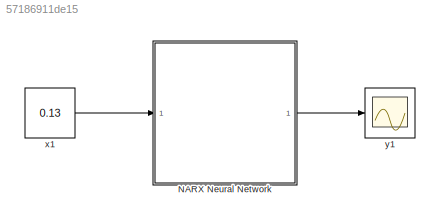
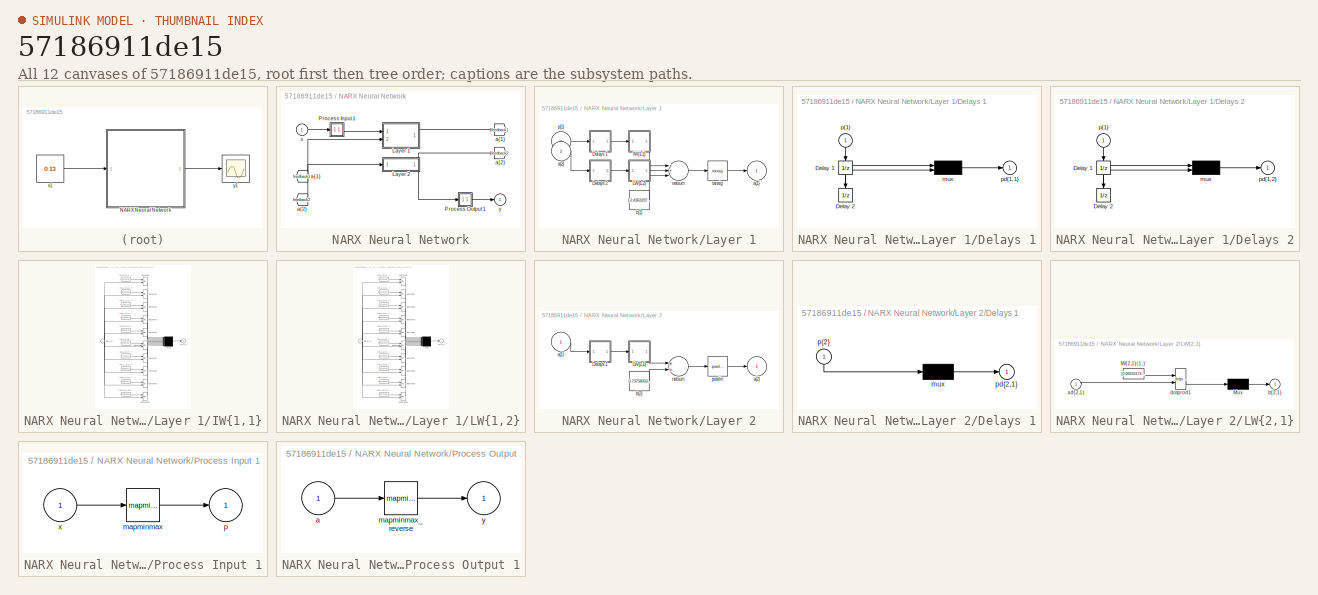
[diagram: thumbnail index - all 12 canvases of the model, root first then tree order]
MODEL slx_57186911de15
KIND model
CONFIG AbsTol = auto
CONFIG EnableMultiTasking = off
CONFIG FixedStep = auto
CONFIG MaxStep = auto
CONFIG MinStep = auto
CONFIG RelTol = 1e-3
CONFIG SampleTimeConstraint = Unconstrained
CONFIG Solver = VariableStepAuto
CONFIG SolverName = VariableStepAuto
CONFIG StartTime = 0.0
CONFIG StopTime = 10.0
BLOCK [SubSystem] NARX Neural Network
  Ports = [1, 1]
  RequestExecContextInheritance = off
BLOCK [From] NARX Neural Network/ a{1} 
  GotoTag = feedback1
BLOCK [From] NARX Neural Network/ a{2} 
  GotoTag = feedback2
BLOCK [SubSystem] NARX Neural Network/Layer 1
  Ports = [2, 1]
  RequestExecContextInheritance = off
BLOCK [SubSystem] NARX Neural Network/Layer 1/Delays 1
  Ports = [1, 1]
  RequestExecContextInheritance = off
BLOCK [UnitDelay] NARX Neural Network/Layer 1/Delays 1/Delay 1
  InitialCondition = pi_input_1_delayed_1
  SampleTime = 0.01
BLOCK [UnitDelay] NARX Neural Network/Layer 1/Delays 1/Delay 2
  InitialCondition = pi_input_1_delayed_2
  SampleTime = 0.01
BLOCK [Mux] NARX Neural Network/Layer 1/Delays 1/mux
  Inputs = 2
  Ports = [2, 1]
BLOCK [Outport] NARX Neural Network/Layer 1/Delays 1/pd{1,1}
  IconDisplay = Port number
BLOCK [Inport] NARX Neural Network/Layer 1/Delays 1/p{1}
  IconDisplay = Port number
  PortDimensions = 1
  SampleTime = 0.01
BLOCK [SubSystem] NARX Neural Network/Layer 1/Delays 2
  Ports = [1, 1]
  RequestExecContextInheritance = off
BLOCK [UnitDelay] NARX Neural Network/Layer 1/Delays 2/Delay 1
  InitialCondition = ai_layer_2_delayed_1
  SampleTime = 0.01
BLOCK [UnitDelay] NARX Neural Network/Layer 1/Delays 2/Delay 2
  InitialCondition = ai_layer_2_delayed_2
  SampleTime = 0.01
BLOCK [Mux] NARX Neural Network/Layer 1/Delays 2/mux
  Inputs = 2
  Ports = [2, 1]
BLOCK [Outport] NARX Neural Network/Layer 1/Delays 2/pd{1,2}
  IconDisplay = Port number
BLOCK [Inport] NARX Neural Network/Layer 1/Delays 2/p{1}
  IconDisplay = Port number
  PortDimensions = 1
  SampleTime = 0.01
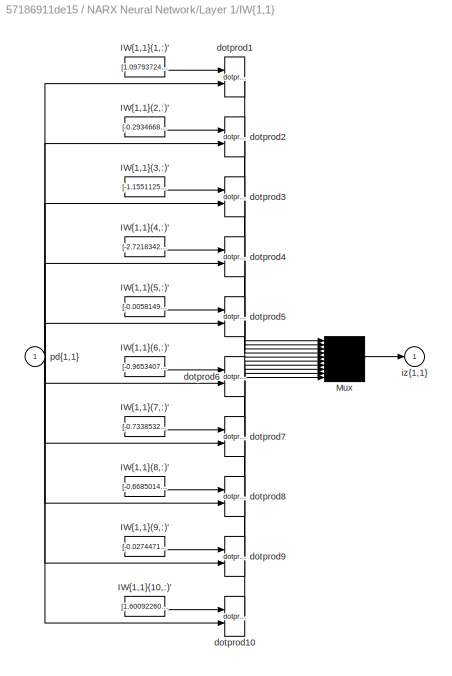
BLOCK [SubSystem] NARX Neural Network/Layer 1/IW{1,1}
  Ports = [1, 1]
  RequestExecContextInheritance = off
BLOCK [Constant] NARX Neural Network/Layer 1/IW{1,1}/IW{1,1}(1,:)'
  Value = [1.0979372418782686882110510850907303392887115478515625;0.0191650517526915260824171838294205372221767902374267578125]
BLOCK [Constant] NARX Neural Network/Layer 1/IW{1,1}/IW{1,1}(10,:)'
  Value = [1.600922608359384380349865750758908689022064208984375;-0.2828286735339669011324303937726654112339019775390625]
BLOCK [Constant] NARX Neural Network/Layer 1/IW{1,1}/IW{1,1}(2,:)'
  Value = [-0.293466813509800028558771600728505291044712066650390625;-1.0439778677693636321777148623368702828884124755859375]
BLOCK [Constant] NARX Neural Network/Layer 1/IW{1,1}/IW{1,1}(3,:)'
  Value = [-1.155112533124688756203113371157087385654449462890625;1.0776329100779620251415735765476711094379425048828125]
BLOCK [Constant] NARX Neural Network/Layer 1/IW{1,1}/IW{1,1}(4,:)'
  Value = [-2.72183421599970554183300919248722493648529052734375;2.68903539600343055582243323442526161670684814453125]
BLOCK [Constant] NARX Neural Network/Layer 1/IW{1,1}/IW{1,1}(5,:)'
  Value = [-0.005814915545582795448897872603311043349094688892364501953125;0.004033964590572259624468021144139129319228231906890869140625]
BLOCK [Constant] NARX Neural Network/Layer 1/IW{1,1}/IW{1,1}(6,:)'
  Value = [-0.965340716580634694565787867759354412555694580078125;1.5788555004179869456493179313838481903076171875]
BLOCK [Constant] NARX Neural Network/Layer 1/IW{1,1}/IW{1,1}(7,:)'
  Value = [-0.73385321371186107430872880286187864840030670166015625;1.82620517145716032558766528381966054439544677734375]
BLOCK [Constant] NARX Neural Network/Layer 1/IW{1,1}/IW{1,1}(8,:)'
  Value = [-0.6685014691172399547980376155464909970760345458984375;0.418008266173798326281740855847601778805255889892578125]
BLOCK [Constant] NARX Neural Network/Layer 1/IW{1,1}/IW{1,1}(9,:)'
  Value = [-0.0274471903957624607794940629901248030364513397216796875;0.03709391713916347643742454920356976799666881561279296875]
BLOCK [Mux] NARX Neural Network/Layer 1/IW{1,1}/Mux
  Inputs = 10
  Ports = [10, 1]
BLOCK [Reference] NARX Neural Network/Layer 1/IW{1,1}/dotprod1  REF=neural/Weight Functions/dotprod
  Ports = [2, 1]
  SourceBlock = neural/Weight Functions/dotprod
  SourceProductBaseCode = Missing
  SourceProductName = MATLAB Runtime - Deep Learning Toolbox
  SourceType = DOTPROD
BLOCK [Reference] NARX Neural Network/Layer 1/IW{1,1}/dotprod10  REF=neural/Weight Functions/dotprod
  Ports = [2, 1]
  SourceBlock = neural/Weight Functions/dotprod
  SourceProductBaseCode = Missing
  SourceProductName = MATLAB Runtime - Deep Learning Toolbox
  SourceType = DOTPROD
BLOCK [Reference] NARX Neural Network/Layer 1/IW{1,1}/dotprod2  REF=neural/Weight Functions/dotprod
  Ports = [2, 1]
  SourceBlock = neural/Weight Functions/dotprod
  SourceProductBaseCode = Missing
  SourceProductName = MATLAB Runtime - Deep Learning Toolbox
  SourceType = DOTPROD
BLOCK [Reference] NARX Neural Network/Layer 1/IW{1,1}/dotprod3  REF=neural/Weight Functions/dotprod
  Ports = [2, 1]
  SourceBlock = neural/Weight Functions/dotprod
  SourceProductBaseCode = Missing
  SourceProductName = MATLAB Runtime - Deep Learning Toolbox
  SourceType = DOTPROD
BLOCK [Reference] NARX Neural Network/Layer 1/IW{1,1}/dotprod4  REF=neural/Weight Functions/dotprod
  Ports = [2, 1]
  SourceBlock = neural/Weight Functions/dotprod
  SourceProductBaseCode = Missing
  SourceProductName = MATLAB Runtime - Deep Learning Toolbox
  SourceType = DOTPROD
BLOCK [Reference] NARX Neural Network/Layer 1/IW{1,1}/dotprod5  REF=neural/Weight Functions/dotprod
  Ports = [2, 1]
  SourceBlock = neural/Weight Functions/dotprod
  SourceProductBaseCode = Missing
  SourceProductName = MATLAB Runtime - Deep Learning Toolbox
  SourceType = DOTPROD
BLOCK [Reference] NARX Neural Network/Layer 1/IW{1,1}/dotprod6  REF=neural/Weight Functions/dotprod
  Ports = [2, 1]
  SourceBlock = neural/Weight Functions/dotprod
  SourceProductBaseCode = Missing
  SourceProductName = MATLAB Runtime - Deep Learning Toolbox
  SourceType = DOTPROD
BLOCK [Reference] NARX Neural Network/Layer 1/IW{1,1}/dotprod7  REF=neural/Weight Functions/dotprod
  Ports = [2, 1]
  SourceBlock = neural/Weight Functions/dotprod
  SourceProductBaseCode = Missing
  SourceProductName = MATLAB Runtime - Deep Learning Toolbox
  SourceType = DOTPROD
BLOCK [Reference] NARX Neural Network/Layer 1/IW{1,1}/dotprod8  REF=neural/Weight Functions/dotprod
  Ports = [2, 1]
  SourceBlock = neural/Weight Functions/dotprod
  SourceProductBaseCode = Missing
  SourceProductName = MATLAB Runtime - Deep Learning Toolbox
  SourceType = DOTPROD
BLOCK [Reference] NARX Neural Network/Layer 1/IW{1,1}/dotprod9  REF=neural/Weight Functions/dotprod
  Ports = [2, 1]
  SourceBlock = neural/Weight Functions/dotprod
  SourceProductBaseCode = Missing
  SourceProductName = MATLAB Runtime - Deep Learning Toolbox
  SourceType = DOTPROD
BLOCK [Outport] NARX Neural Network/Layer 1/IW{1,1}/iz{1,1}
  IconDisplay = Port number
BLOCK [Inport] NARX Neural Network/Layer 1/IW{1,1}/pd{1,1}
  IconDisplay = Port number
  PortDimensions = 2
  SampleTime = 0.01
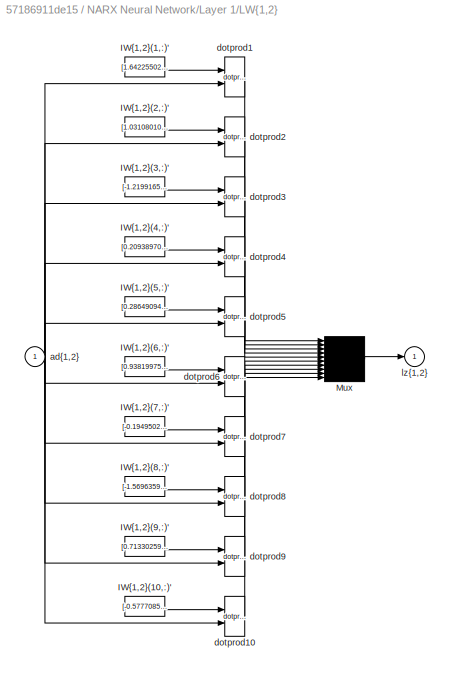
BLOCK [SubSystem] NARX Neural Network/Layer 1/LW{1,2}
  Ports = [1, 1]
  RequestExecContextInheritance = off
BLOCK [Constant] NARX Neural Network/Layer 1/LW{1,2}/IW{1,2}(1,:)'
  Value = [1.642255025157025816184841460199095308780670166015625;-1.4093673055024302787074930165545083582401275634765625]
BLOCK [Constant] NARX Neural Network/Layer 1/LW{1,2}/IW{1,2}(10,:)'
  Value = [-0.57770850324338163250814659477327950298786163330078125;0.955316315342951583033936913125216960906982421875]
BLOCK [Constant] NARX Neural Network/Layer 1/LW{1,2}/IW{1,2}(2,:)'
  Value = [1.0310801047850450817833234395948238670825958251953125;-1.2772346180374734014861815012409351766109466552734375]
BLOCK [Constant] NARX Neural Network/Layer 1/LW{1,2}/IW{1,2}(3,:)'
  Value = [-1.2199165341200777223917839364730753004550933837890625;-0.07277162110721901999710325981141068041324615478515625]
BLOCK [Constant] NARX Neural Network/Layer 1/LW{1,2}/IW{1,2}(4,:)'
  Value = [0.209389701368080272114724493803805671632289886474609375;-0.58195073506371886029597817469039000570774078369140625]
BLOCK [Constant] NARX Neural Network/Layer 1/LW{1,2}/IW{1,2}(5,:)'
  Value = [0.286490946947176805537083055241964757442474365234375;-0.06369009811409410970473032875815988518297672271728515625]
BLOCK [Constant] NARX Neural Network/Layer 1/LW{1,2}/IW{1,2}(6,:)'
  Value = [0.93819975828104229531589908219757489860057830810546875;0.99364107653072764048118870050529949367046356201171875]
BLOCK [Constant] NARX Neural Network/Layer 1/LW{1,2}/IW{1,2}(7,:)'
  Value = [-0.19495021059895289994301492697559297084808349609375;0.91666675845648359910455837962217628955841064453125]
BLOCK [Constant] NARX Neural Network/Layer 1/LW{1,2}/IW{1,2}(8,:)'
  Value = [-1.5696359940931479126646763688768260180950164794921875;1.1582610808051665429729837342165410518646240234375]
BLOCK [Constant] NARX Neural Network/Layer 1/LW{1,2}/IW{1,2}(9,:)'
  Value = [0.71330259315922106555518666937132366001605987548828125;0.0500685091541294424732910783859551884233951568603515625]
BLOCK [Mux] NARX Neural Network/Layer 1/LW{1,2}/Mux
  Inputs = 10
  Ports = [10, 1]
BLOCK [Inport] NARX Neural Network/Layer 1/LW{1,2}/ad{1,2}
  IconDisplay = Port number
  PortDimensions = 2
  SampleTime = 0.01
BLOCK [Reference] NARX Neural Network/Layer 1/LW{1,2}/dotprod1  REF=neural/Weight Functions/dotprod
  Ports = [2, 1]
  SourceBlock = neural/Weight Functions/dotprod
  SourceProductBaseCode = Missing
  SourceProductName = MATLAB Runtime - Deep Learning Toolbox
  SourceType = DOTPROD
BLOCK [Reference] NARX Neural Network/Layer 1/LW{1,2}/dotprod10  REF=neural/Weight Functions/dotprod
  Ports = [2, 1]
  SourceBlock = neural/Weight Functions/dotprod
  SourceProductBaseCode = Missing
  SourceProductName = MATLAB Runtime - Deep Learning Toolbox
  SourceType = DOTPROD
BLOCK [Reference] NARX Neural Network/Layer 1/LW{1,2}/dotprod2  REF=neural/Weight Functions/dotprod
  Ports = [2, 1]
  SourceBlock = neural/Weight Functions/dotprod
  SourceProductBaseCode = Missing
  SourceProductName = MATLAB Runtime - Deep Learning Toolbox
  SourceType = DOTPROD
BLOCK [Reference] NARX Neural Network/Layer 1/LW{1,2}/dotprod3  REF=neural/Weight Functions/dotprod
  Ports = [2, 1]
  SourceBlock = neural/Weight Functions/dotprod
  SourceProductBaseCode = Missing
  SourceProductName = MATLAB Runtime - Deep Learning Toolbox
  SourceType = DOTPROD
BLOCK [Reference] NARX Neural Network/Layer 1/LW{1,2}/dotprod4  REF=neural/Weight Functions/dotprod
  Ports = [2, 1]
  SourceBlock = neural/Weight Functions/dotprod
  SourceProductBaseCode = Missing
  SourceProductName = MATLAB Runtime - Deep Learning Toolbox
  SourceType = DOTPROD
BLOCK [Reference] NARX Neural Network/Layer 1/LW{1,2}/dotprod5  REF=neural/Weight Functions/dotprod
  Ports = [2, 1]
  SourceBlock = neural/Weight Functions/dotprod
  SourceProductBaseCode = Missing
  SourceProductName = MATLAB Runtime - Deep Learning Toolbox
  SourceType = DOTPROD
BLOCK [Reference] NARX Neural Network/Layer 1/LW{1,2}/dotprod6  REF=neural/Weight Functions/dotprod
  Ports = [2, 1]
  SourceBlock = neural/Weight Functions/dotprod
  SourceProductBaseCode = Missing
  SourceProductName = MATLAB Runtime - Deep Learning Toolbox
  SourceType = DOTPROD
BLOCK [Reference] NARX Neural Network/Layer 1/LW{1,2}/dotprod7  REF=neural/Weight Functions/dotprod
  Ports = [2, 1]
  SourceBlock = neural/Weight Functions/dotprod
  SourceProductBaseCode = Missing
  SourceProductName = MATLAB Runtime - Deep Learning Toolbox
  SourceType = DOTPROD
BLOCK [Reference] NARX Neural Network/Layer 1/LW{1,2}/dotprod8  REF=neural/Weight Functions/dotprod
  Ports = [2, 1]
  SourceBlock = neural/Weight Functions/dotprod
  SourceProductBaseCode = Missing
  SourceProductName = MATLAB Runtime - Deep Learning Toolbox
  SourceType = DOTPROD
BLOCK [Reference] NARX Neural Network/Layer 1/LW{1,2}/dotprod9  REF=neural/Weight Functions/dotprod
  Ports = [2, 1]
  SourceBlock = neural/Weight Functions/dotprod
  SourceProductBaseCode = Missing
  SourceProductName = MATLAB Runtime - Deep Learning Toolbox
  SourceType = DOTPROD
BLOCK [Outport] NARX Neural Network/Layer 1/LW{1,2}/lz{1,2}
  IconDisplay = Port number
BLOCK [Outport] NARX Neural Network/Layer 1/a{1}
  IconDisplay = Port number
  InitialOutput = [0;0;0;0;0;0;0;0;0;0]
BLOCK [Inport] NARX Neural Network/Layer 1/a{2} 
  IconDisplay = Port number
  Port = 2
  PortDimensions = 1
  SampleTime = 0.01
BLOCK [Constant] NARX Neural Network/Layer 1/b{1}
  Value = [-2.43631978286423223067913568229414522647857666015625;1.916635993935253967634935179376043379306793212890625;0.44474333860274717356020346414879895746707916259765625;1.40699598074784315571150727919302880764007568359375;0.258090834940569224809081561033963225781917572021484375;0.411720880000688682631704295999952591955661773681640625;-0.89533950815155305402726071406505070626735687255859375;-0.81504545...<+153ch>
BLOCK [Sum] NARX Neural Network/Layer 1/netsum
  Inputs = 3
  Ports = [3, 1]
BLOCK [Inport] NARX Neural Network/Layer 1/p{1}
  IconDisplay = Port number
  PortDimensions = 1
  SampleTime = 0.01
BLOCK [Reference] NARX Neural Network/Layer 1/tansig  REF=neural/Transfer Functions/tansig
  Ports = [1, 1]
  SourceBlock = neural/Transfer Functions/tansig
  SourceProductBaseCode = Missing
  SourceProductName = MATLAB Runtime - Deep Learning Toolbox
  SourceType = TANSIG
BLOCK [SubSystem] NARX Neural Network/Layer 2
  Ports = [1, 1]
  RequestExecContextInheritance = off
BLOCK [SubSystem] NARX Neural Network/Layer 2/Delays 1
  Ports = [1, 1]
  RequestExecContextInheritance = off
BLOCK [Mux] NARX Neural Network/Layer 2/Delays 1/mux
  Inputs = 1
  Ports = [1, 1]
BLOCK [Outport] NARX Neural Network/Layer 2/Delays 1/pd{2,1}
  IconDisplay = Port number
BLOCK [Inport] NARX Neural Network/Layer 2/Delays 1/p{2}
  IconDisplay = Port number
  PortDimensions = 10
  SampleTime = 0.01
BLOCK [SubSystem] NARX Neural Network/Layer 2/LW{2,1}
  Ports = [1, 1]
  RequestExecContextInheritance = off
BLOCK [Constant] NARX Neural Network/Layer 2/LW{2,1}/IW{2,1}(1,:)'
  Value = [0.066561747684047933848461298111942596733570098876953125;0.0174164340150854309030581390516090323217213153839111328125;-0.01349998257581237932900553033732649055309593677520751953125;0.000273691422662264405817056367453687926172278821468353271484375;4.30841018354974725212969133281148970127105712890625;0.00110089573716304844029634235624826033017598092555999755859375;0.00275331490695282857239511997704...<+206ch>
BLOCK [Mux] NARX Neural Network/Layer 2/LW{2,1}/Mux
  Inputs = 1
  Ports = [1, 1]
BLOCK [Inport] NARX Neural Network/Layer 2/LW{2,1}/ad{2,1}
  IconDisplay = Port number
  PortDimensions = 10
  SampleTime = 0.01
BLOCK [Reference] NARX Neural Network/Layer 2/LW{2,1}/dotprod1  REF=neural/Weight Functions/dotprod
  Ports = [2, 1]
  SourceBlock = neural/Weight Functions/dotprod
  SourceProductBaseCode = Missing
  SourceProductName = MATLAB Runtime - Deep Learning Toolbox
  SourceType = DOTPROD
BLOCK [Outport] NARX Neural Network/Layer 2/LW{2,1}/lz{2,1}
  IconDisplay = Port number
BLOCK [Inport] NARX Neural Network/Layer 2/a{1} 
  IconDisplay = Port number
  PortDimensions = 10
  SampleTime = 0.01
BLOCK [Outport] NARX Neural Network/Layer 2/a{2}
  IconDisplay = Port number
  InitialOutput = 0
BLOCK [Constant] NARX Neural Network/Layer 2/b{2}
  Value = -0.73758050638896843764769073459319770336151123046875
BLOCK [Sum] NARX Neural Network/Layer 2/netsum
  Inputs = 2
  Ports = [2, 1]
BLOCK [Reference] NARX Neural Network/Layer 2/purelin  REF=neural/Transfer Functions/purelin
  Ports = [1, 1]
  SourceBlock = neural/Transfer Functions/purelin
  SourceProductBaseCode = Missing
  SourceProductName = MATLAB Runtime - Deep Learning Toolbox
  SourceType = PURELIN
BLOCK [SubSystem] NARX Neural Network/Process Input 1
  Ports = [1, 1]
  RequestExecContextInheritance = off
BLOCK [Reference] NARX Neural Network/Process Input 1/mapminmax  REF=neural/Processing Functions/mapminmax
  Ports = [1, 1]
  SourceBlock = neural/Processing Functions/mapminmax
  SourceProductBaseCode = Missing
  SourceProductName = MATLAB Runtime - Deep Learning Toolbox
  SourceType = MAPMINMAX Preprocess
BLOCK [Outport] NARX Neural Network/Process Input 1/p
  IconDisplay = Port number
  PortDimensions = 1
  SampleTime = 0.01
BLOCK [Inport] NARX Neural Network/Process Input 1/x
  IconDisplay = Port number
  PortDimensions = 1
  SampleTime = 0.01
BLOCK [SubSystem] NARX Neural Network/Process Output 1
  Ports = [1, 1]
  RequestExecContextInheritance = off
BLOCK [Inport] NARX Neural Network/Process Output 1/a
  IconDisplay = Port number
  PortDimensions = 1
  SampleTime = 0.01
BLOCK [Reference] NARX Neural Network/Process Output 1/mapminmax_reverse  REF=neural/Processing Functions/mapminmax_reverse
  Ports = [1, 1]
  SourceBlock = neural/Processing Functions/mapminmax_reverse
  SourceProductBaseCode = Missing
  SourceProductName = MATLAB Runtime - Deep Learning Toolbox
  SourceType = MAPMINMAX Reverse Process
BLOCK [Outport] NARX Neural Network/Process Output 1/y
  IconDisplay = Port number
  PortDimensions = 1
  SampleTime = 0.01
BLOCK [Goto] NARX Neural Network/a{1}
  GotoTag = feedback1
BLOCK [Goto] NARX Neural Network/a{2}
  GotoTag = feedback2
BLOCK [Inport] NARX Neural Network/x
  IconDisplay = Port number
  PortDimensions = 1
  SampleTime = 0.01
BLOCK [Outport] NARX Neural Network/y
  IconDisplay = Port number
  InitialOutput = 0
BLOCK [Constant] x1
  SampleTime = 0.01
  Value = 0.13
BLOCK [Scope] y1
  Floating = off
  NumInputPorts = 1
  Ports = [1]
LINE NARX Neural Network/ a{1} :1 -> NARX Neural Network/Layer 2:1
LINE NARX Neural Network/ a{2} :1 -> NARX Neural Network/Layer 1:2
NET NARX Neural Network/Layer 1/Delays 1/Delay 1:1 -> NARX Neural Network/Layer 1/Delays 1/Delay 2:1, NARX Neural Network/Layer 1/Delays 1/mux:1
LINE NARX Neural Network/Layer 1/Delays 1/Delay 2:1 -> NARX Neural Network/Layer 1/Delays 1/mux:2
LINE NARX Neural Network/Layer 1/Delays 1/mux:1 -> NARX Neural Network/Layer 1/Delays 1/pd{1,1}:1
LINE NARX Neural Network/Layer 1/Delays 1/p{1}:1 -> NARX Neural Network/Layer 1/Delays 1/Delay 1:1
LINE NARX Neural Network/Layer 1/Delays 1:1 -> NARX Neural Network/Layer 1/IW{1,1}:1
NET NARX Neural Network/Layer 1/Delays 2/Delay 1:1 -> NARX Neural Network/Layer 1/Delays 2/Delay 2:1, NARX Neural Network/Layer 1/Delays 2/mux:1
LINE NARX Neural Network/Layer 1/Delays 2/Delay 2:1 -> NARX Neural Network/Layer 1/Delays 2/mux:2
LINE NARX Neural Network/Layer 1/Delays 2/mux:1 -> NARX Neural Network/Layer 1/Delays 2/pd{1,2}:1
LINE NARX Neural Network/Layer 1/Delays 2/p{1}:1 -> NARX Neural Network/Layer 1/Delays 2/Delay 1:1
LINE NARX Neural Network/Layer 1/Delays 2:1 -> NARX Neural Network/Layer 1/LW{1,2}:1
LINE NARX Neural Network/Layer 1/IW{1,1}/IW{1,1}(1,:)':1 -> NARX Neural Network/Layer 1/IW{1,1}/dotprod1:1
LINE NARX Neural Network/Layer 1/IW{1,1}/IW{1,1}(10,:)':1 -> NARX Neural Network/Layer 1/IW{1,1}/dotprod10:1
LINE NARX Neural Network/Layer 1/IW{1,1}/IW{1,1}(2,:)':1 -> NARX Neural Network/Layer 1/IW{1,1}/dotprod2:1
LINE NARX Neural Network/Layer 1/IW{1,1}/IW{1,1}(3,:)':1 -> NARX Neural Network/Layer 1/IW{1,1}/dotprod3:1
LINE NARX Neural Network/Layer 1/IW{1,1}/IW{1,1}(4,:)':1 -> NARX Neural Network/Layer 1/IW{1,1}/dotprod4:1
LINE NARX Neural Network/Layer 1/IW{1,1}/IW{1,1}(5,:)':1 -> NARX Neural Network/Layer 1/IW{1,1}/dotprod5:1
LINE NARX Neural Network/Layer 1/IW{1,1}/IW{1,1}(6,:)':1 -> NARX Neural Network/Layer 1/IW{1,1}/dotprod6:1
LINE NARX Neural Network/Layer 1/IW{1,1}/IW{1,1}(7,:)':1 -> NARX Neural Network/Layer 1/IW{1,1}/dotprod7:1
LINE NARX Neural Network/Layer 1/IW{1,1}/IW{1,1}(8,:)':1 -> NARX Neural Network/Layer 1/IW{1,1}/dotprod8:1
LINE NARX Neural Network/Layer 1/IW{1,1}/IW{1,1}(9,:)':1 -> NARX Neural Network/Layer 1/IW{1,1}/dotprod9:1
LINE NARX Neural Network/Layer 1/IW{1,1}/Mux:1 -> NARX Neural Network/Layer 1/IW{1,1}/iz{1,1}:1
LINE NARX Neural Network/Layer 1/IW{1,1}/dotprod10:1 -> NARX Neural Network/Layer 1/IW{1,1}/Mux:10
LINE NARX Neural Network/Layer 1/IW{1,1}/dotprod1:1 -> NARX Neural Network/Layer 1/IW{1,1}/Mux:1
LINE NARX Neural Network/Layer 1/IW{1,1}/dotprod2:1 -> NARX Neural Network/Layer 1/IW{1,1}/Mux:2
LINE NARX Neural Network/Layer 1/IW{1,1}/dotprod3:1 -> NARX Neural Network/Layer 1/IW{1,1}/Mux:3
LINE NARX Neural Network/Layer 1/IW{1,1}/dotprod4:1 -> NARX Neural Network/Layer 1/IW{1,1}/Mux:4
LINE NARX Neural Network/Layer 1/IW{1,1}/dotprod5:1 -> NARX Neural Network/Layer 1/IW{1,1}/Mux:5
LINE NARX Neural Network/Layer 1/IW{1,1}/dotprod6:1 -> NARX Neural Network/Layer 1/IW{1,1}/Mux:6
LINE NARX Neural Network/Layer 1/IW{1,1}/dotprod7:1 -> NARX Neural Network/Layer 1/IW{1,1}/Mux:7
LINE NARX Neural Network/Layer 1/IW{1,1}/dotprod8:1 -> NARX Neural Network/Layer 1/IW{1,1}/Mux:8
LINE NARX Neural Network/Layer 1/IW{1,1}/dotprod9:1 -> NARX Neural Network/Layer 1/IW{1,1}/Mux:9
NET NARX Neural Network/Layer 1/IW{1,1}/pd{1,1}:1 -> NARX Neural Network/Layer 1/IW{1,1}/dotprod10:2, NARX Neural Network/Layer 1/IW{1,1}/dotprod1:2, NARX Neural Network/Layer 1/IW{1,1}/dotprod2:2, NARX Neural Network/Layer 1/IW{1,1}/dotprod3:2, NARX Neural Network/Layer 1/IW{1,1}/dotprod4:2, NARX Neural Network/Layer 1/IW{1,1}/dotprod5:2, NARX Neural Network/Layer 1/IW{1,1}/dotprod6:2, NARX Neural Network/Layer 1/IW{1,1}/dotprod7:2, NARX Neural Network/Layer 1/IW{1,1}/dotprod8:2, NARX Neural Network/Layer 1/IW{1,1}/dotprod9:2
LINE NARX Neural Network/Layer 1/IW{1,1}:1 -> NARX Neural Network/Layer 1/netsum:1
LINE NARX Neural Network/Layer 1/LW{1,2}/IW{1,2}(1,:)':1 -> NARX Neural Network/Layer 1/LW{1,2}/dotprod1:1
LINE NARX Neural Network/Layer 1/LW{1,2}/IW{1,2}(10,:)':1 -> NARX Neural Network/Layer 1/LW{1,2}/dotprod10:1
LINE NARX Neural Network/Layer 1/LW{1,2}/IW{1,2}(2,:)':1 -> NARX Neural Network/Layer 1/LW{1,2}/dotprod2:1
LINE NARX Neural Network/Layer 1/LW{1,2}/IW{1,2}(3,:)':1 -> NARX Neural Network/Layer 1/LW{1,2}/dotprod3:1
LINE NARX Neural Network/Layer 1/LW{1,2}/IW{1,2}(4,:)':1 -> NARX Neural Network/Layer 1/LW{1,2}/dotprod4:1
LINE NARX Neural Network/Layer 1/LW{1,2}/IW{1,2}(5,:)':1 -> NARX Neural Network/Layer 1/LW{1,2}/dotprod5:1
LINE NARX Neural Network/Layer 1/LW{1,2}/IW{1,2}(6,:)':1 -> NARX Neural Network/Layer 1/LW{1,2}/dotprod6:1
LINE NARX Neural Network/Layer 1/LW{1,2}/IW{1,2}(7,:)':1 -> NARX Neural Network/Layer 1/LW{1,2}/dotprod7:1
LINE NARX Neural Network/Layer 1/LW{1,2}/IW{1,2}(8,:)':1 -> NARX Neural Network/Layer 1/LW{1,2}/dotprod8:1
LINE NARX Neural Network/Layer 1/LW{1,2}/IW{1,2}(9,:)':1 -> NARX Neural Network/Layer 1/LW{1,2}/dotprod9:1
LINE NARX Neural Network/Layer 1/LW{1,2}/Mux:1 -> NARX Neural Network/Layer 1/LW{1,2}/lz{1,2}:1
NET NARX Neural Network/Layer 1/LW{1,2}/ad{1,2}:1 -> NARX Neural Network/Layer 1/LW{1,2}/dotprod10:2, NARX Neural Network/Layer 1/LW{1,2}/dotprod1:2, NARX Neural Network/Layer 1/LW{1,2}/dotprod2:2, NARX Neural Network/Layer 1/LW{1,2}/dotprod3:2, NARX Neural Network/Layer 1/LW{1,2}/dotprod4:2, NARX Neural Network/Layer 1/LW{1,2}/dotprod5:2, NARX Neural Network/Layer 1/LW{1,2}/dotprod6:2, NARX Neural Network/Layer 1/LW{1,2}/dotprod7:2, NARX Neural Network/Layer 1/LW{1,2}/dotprod8:2, NARX Neural Network/Layer 1/LW{1,2}/dotprod9:2
LINE NARX Neural Network/Layer 1/LW{1,2}/dotprod10:1 -> NARX Neural Network/Layer 1/LW{1,2}/Mux:10
LINE NARX Neural Network/Layer 1/LW{1,2}/dotprod1:1 -> NARX Neural Network/Layer 1/LW{1,2}/Mux:1
LINE NARX Neural Network/Layer 1/LW{1,2}/dotprod2:1 -> NARX Neural Network/Layer 1/LW{1,2}/Mux:2
LINE NARX Neural Network/Layer 1/LW{1,2}/dotprod3:1 -> NARX Neural Network/Layer 1/LW{1,2}/Mux:3
LINE NARX Neural Network/Layer 1/LW{1,2}/dotprod4:1 -> NARX Neural Network/Layer 1/LW{1,2}/Mux:4
LINE NARX Neural Network/Layer 1/LW{1,2}/dotprod5:1 -> NARX Neural Network/Layer 1/LW{1,2}/Mux:5
LINE NARX Neural Network/Layer 1/LW{1,2}/dotprod6:1 -> NARX Neural Network/Layer 1/LW{1,2}/Mux:6
LINE NARX Neural Network/Layer 1/LW{1,2}/dotprod7:1 -> NARX Neural Network/Layer 1/LW{1,2}/Mux:7
LINE NARX Neural Network/Layer 1/LW{1,2}/dotprod8:1 -> NARX Neural Network/Layer 1/LW{1,2}/Mux:8
LINE NARX Neural Network/Layer 1/LW{1,2}/dotprod9:1 -> NARX Neural Network/Layer 1/LW{1,2}/Mux:9
LINE NARX Neural Network/Layer 1/LW{1,2}:1 -> NARX Neural Network/Layer 1/netsum:2
LINE NARX Neural Network/Layer 1/a{2} :1 -> NARX Neural Network/Layer 1/Delays 2:1
LINE NARX Neural Network/Layer 1/b{1}:1 -> NARX Neural Network/Layer 1/netsum:3
LINE NARX Neural Network/Layer 1/netsum:1 -> NARX Neural Network/Layer 1/tansig:1
LINE NARX Neural Network/Layer 1/p{1}:1 -> NARX Neural Network/Layer 1/Delays 1:1
LINE NARX Neural Network/Layer 1/tansig:1 -> NARX Neural Network/Layer 1/a{1}:1
LINE NARX Neural Network/Layer 1:1 -> NARX Neural Network/a{1}:1
LINE NARX Neural Network/Layer 2/Delays 1/mux:1 -> NARX Neural Network/Layer 2/Delays 1/pd{2,1}:1
LINE NARX Neural Network/Layer 2/Delays 1/p{2}:1 -> NARX Neural Network/Layer 2/Delays 1/mux:1
LINE NARX Neural Network/Layer 2/Delays 1:1 -> NARX Neural Network/Layer 2/LW{2,1}:1
LINE NARX Neural Network/Layer 2/LW{2,1}/IW{2,1}(1,:)':1 -> NARX Neural Network/Layer 2/LW{2,1}/dotprod1:1
LINE NARX Neural Network/Layer 2/LW{2,1}/Mux:1 -> NARX Neural Network/Layer 2/LW{2,1}/lz{2,1}:1
LINE NARX Neural Network/Layer 2/LW{2,1}/ad{2,1}:1 -> NARX Neural Network/Layer 2/LW{2,1}/dotprod1:2
LINE NARX Neural Network/Layer 2/LW{2,1}/dotprod1:1 -> NARX Neural Network/Layer 2/LW{2,1}/Mux:1
LINE NARX Neural Network/Layer 2/LW{2,1}:1 -> NARX Neural Network/Layer 2/netsum:1
LINE NARX Neural Network/Layer 2/a{1} :1 -> NARX Neural Network/Layer 2/Delays 1:1
LINE NARX Neural Network/Layer 2/b{2}:1 -> NARX Neural Network/Layer 2/netsum:2
LINE NARX Neural Network/Layer 2/netsum:1 -> NARX Neural Network/Layer 2/purelin:1
LINE NARX Neural Network/Layer 2/purelin:1 -> NARX Neural Network/Layer 2/a{2}:1
NET NARX Neural Network/Layer 2:1 -> NARX Neural Network/Process Output 1:1, NARX Neural Network/a{2}:1
LINE NARX Neural Network/Process Input 1/mapminmax:1 -> NARX Neural Network/Process Input 1/p:1
LINE NARX Neural Network/Process Input 1/x:1 -> NARX Neural Network/Process Input 1/mapminmax:1
LINE NARX Neural Network/Process Input 1:1 -> NARX Neural Network/Layer 1:1
LINE NARX Neural Network/Process Output 1/a:1 -> NARX Neural Network/Process Output 1/mapminmax_reverse:1
LINE NARX Neural Network/Process Output 1/mapminmax_reverse:1 -> NARX Neural Network/Process Output 1/y:1
LINE NARX Neural Network/Process Output 1:1 -> NARX Neural Network/y:1
LINE NARX Neural Network/x:1 -> NARX Neural Network/Process Input 1:1
LINE NARX Neural Network:1 -> y1:1
LINE x1:1 -> NARX Neural Network:1
note: NET lines group one-source signal fan-out (src -> all destinations, sorted); 1:1 wires keep LINE
